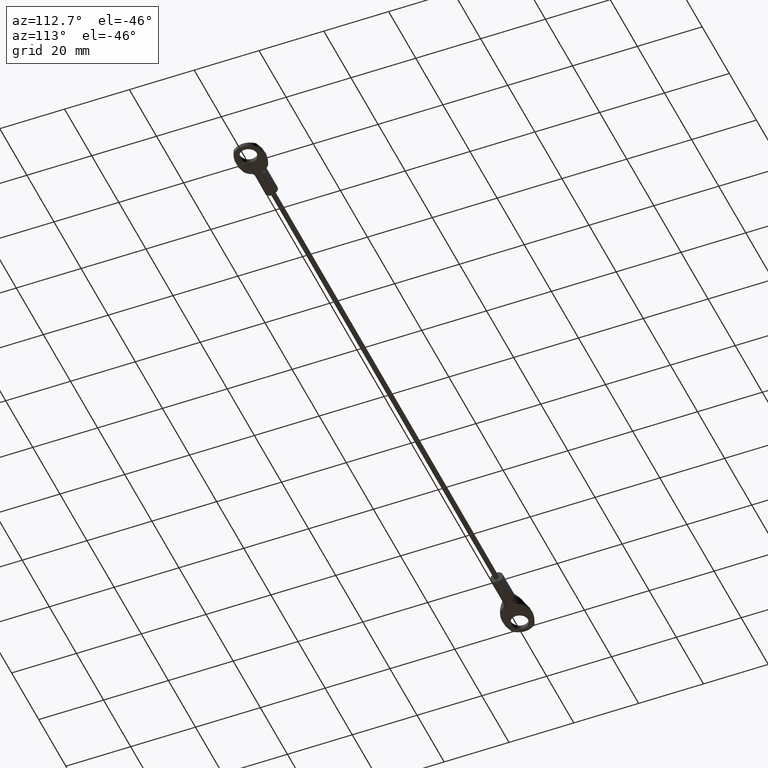
[diagram: clean part render]
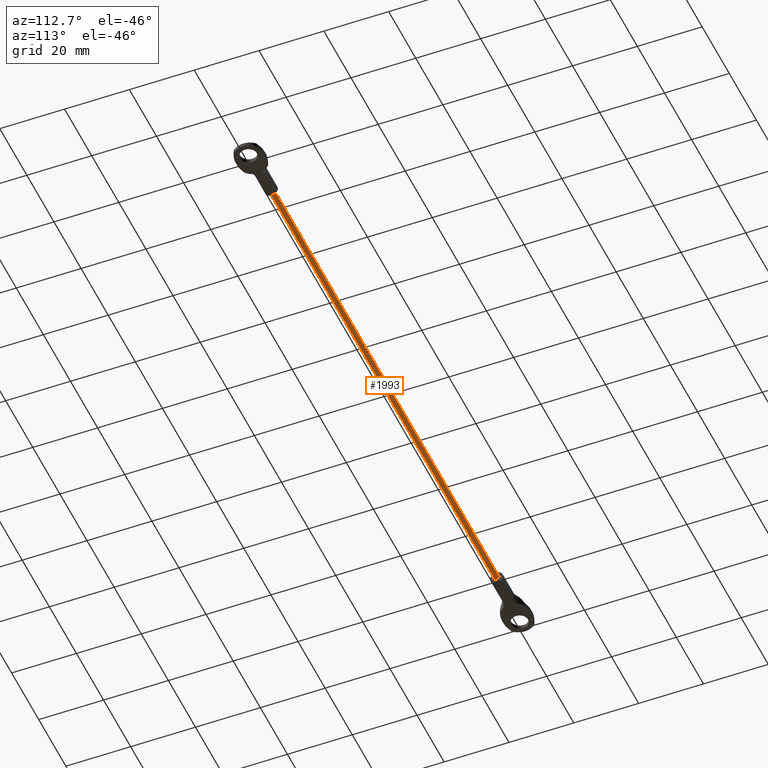
[diagram: same view with one face highlighted and labeled with its STEP entity id]
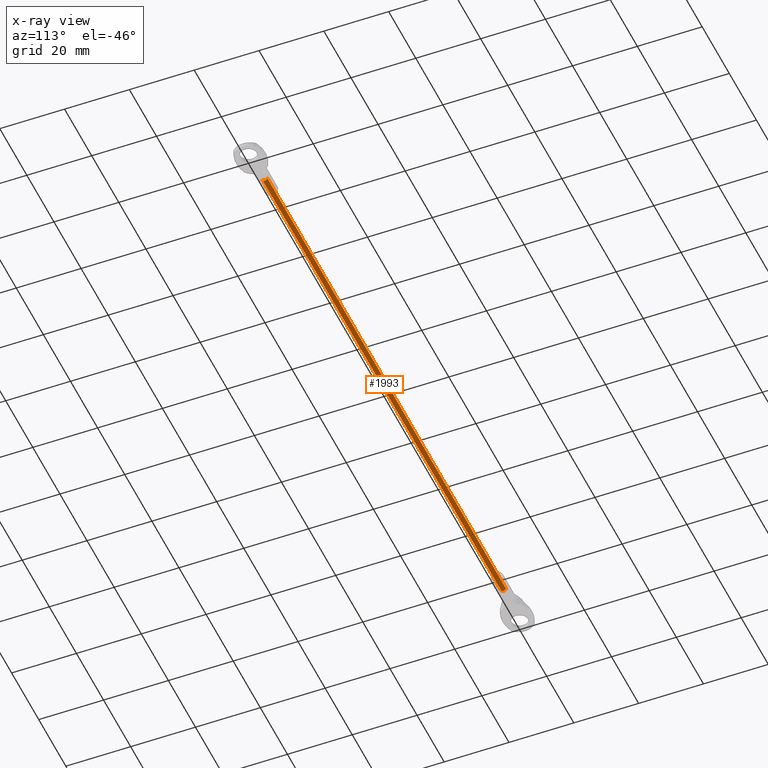
[diagram: x-ray of the same camera — body ghosted, the highlighted face saturated]
A machine part, auxiliary view. The second image highlights one B-rep face of the part: STEP entity #1993.
The next image is the same camera in x-ray: the body ghosted, the highlighted face saturated — about 0% of this face is hidden behind the body in this view.
In plain terms, the highlighted face is a freeform B-spline surface patch.
Its self-contained STEP definition (entity closure, byte-faithful):
#1891=CARTESIAN_POINT('',(-7.599999999999993,0.744757144772750,2.088525675992569));
#1892=CARTESIAN_POINT('',(-7.599999999999993,0.747290711586454,2.067211046478483));
#1893=CARTESIAN_POINT('',(-7.599999999999993,0.748601098816400,2.045786404651143));
#1894=CARTESIAN_POINT('',(-7.599999999999993,0.794387503467543,1.297185305834743));
#1895=CARTESIAN_POINT('',(-7.599999999999993,0.045786404651143,1.251398901183600));
#1896=CARTESIAN_POINT('',(-7.599999999999993,-0.702814694165257,1.205612496532457));
#1897=CARTESIAN_POINT('',(-7.599999999999993,-0.748601098816400,1.954213595348857));
#1898=CARTESIAN_POINT('',(-192.510000000000050,0.744757144772750,2.088525675992569));
#1899=CARTESIAN_POINT('',(-192.510000000000130,0.747290711586454,2.067211046478483));
#1900=CARTESIAN_POINT('',(-192.510000000000100,0.748601098816400,2.045786404651143));
#1901=CARTESIAN_POINT('',(-192.510000000000050,0.794387503467543,1.297185305834743));
#1902=CARTESIAN_POINT('',(-192.510000000000100,0.045786404651143,1.251398901183600));
#1903=CARTESIAN_POINT('',(-192.510000000000050,-0.702814694165257,1.205612496532457));
#1904=CARTESIAN_POINT('',(-192.510000000000100,-0.748601098816400,1.954213595348857));
#1912=(BOUNDED_SURFACE()B_SPLINE_SURFACE(2,1,((#1891,#1898),(#1892,#1899),(#1893,#1900),(#1894,#1901),(#1895,#1902),(#1896,#1903),(#1897,#1904)),.UNSPECIFIED.,.F.,.F.,.U.)B_SPLINE_SURFACE_WITH_KNOTS((3,2,2,3),(2,2),(3.078760800517997,3.141592653589793,4.712388980384690,6.283185307179586),(0.0,184.910000000000110),.UNSPECIFIED.)GEOMETRIC_REPRESENTATION_ITEM()RATIONAL_B_SPLINE_SURFACE(((0.977505800795127,0.977505800795127),(0.988284271247462,0.988284271247462),(1.0,1.0),(0.707106781186548,0.707106781186548),(1.0,1.0),(0.707106781186548,0.707106781186548),(1.0,1.0)))REPRESENTATION_ITEM('')SURFACE());
#1913=CARTESIAN_POINT('',(-11.999999999999989,0.744757144720459,2.088525676432488));
#1914=VERTEX_POINT('',#1913);
#1915=CARTESIAN_POINT('',(-12.0,0.0,1.250000000000000));
#1916=VERTEX_POINT('',#1915);
#1917=CARTESIAN_POINT('',(-11.999999999999993,0.744757144720459,2.088525676432488));
#1918=CARTESIAN_POINT('',(-11.999999999999998,0.750000000000000,2.044418090183503));
#1919=CARTESIAN_POINT('',(-12.0,0.750000000000000,2.0));
#1920=CARTESIAN_POINT('',(-12.0,0.750000000000000,1.250000000000000));
#1921=CARTESIAN_POINT('',(-12.0,0.0,1.250000000000000));
#1929=(BOUNDED_CURVE()B_SPLINE_CURVE(2,(#1917,#1918,#1919,#1920,#1921),.UNSPECIFIED.,.F.,.U.)B_SPLINE_CURVE_WITH_KNOTS((3,2,3),(0.229562473315988,0.250000000000000,0.500000000000000),.UNSPECIFIED.)CURVE()GEOMETRIC_REPRESENTATION_ITEM()RATIONAL_B_SPLINE_CURVE((0.956026753796551,0.976055948099735,1.0,0.707106781186548,1.0))REPRESENTATION_ITEM(''));
#1930=EDGE_CURVE('',#1914,#1916,#1929,.T.);
#1931=ORIENTED_EDGE('',*,*,#1930,.T.);
#1932=CARTESIAN_POINT('',(-11.999999999999989,-0.748601098783436,1.954213594809890));
#1933=VERTEX_POINT('',#1932);
#1934=CARTESIAN_POINT('',(-12.0,0.0,1.250000000000000));
#1935=CARTESIAN_POINT('',(-12.0,-0.705529549161458,1.250000000000000));
#1936=CARTESIAN_POINT('',(-11.999999999999995,-0.748601098783436,1.954213594809890));
#1944=(BOUNDED_CURVE()B_SPLINE_CURVE(2,(#1934,#1935,#1936),.UNSPECIFIED.,.F.,.U.)B_SPLINE_CURVE_WITH_KNOTS((3,3),(0.500000000000000,0.739332961993513),.UNSPECIFIED.)CURVE()GEOMETRIC_REPRESENTATION_ITEM()RATIONAL_B_SPLINE_CURVE((1.0,0.719603993574250,0.976072041140714))REPRESENTATION_ITEM(''));
#1945=EDGE_CURVE('',#1916,#1933,#1944,.T.);
#1946=ORIENTED_EDGE('',*,*,#1945,.T.);
#1947=CARTESIAN_POINT('',(-188.0,-0.748601098783436,1.954213594809890));
#1948=VERTEX_POINT('',#1947);
#1949=CARTESIAN_POINT('',(-11.999999999999989,-0.748601098783436,1.954213594809890));
#1950=CARTESIAN_POINT('',(-188.0,-0.748601098783436,1.954213594809890));
#1951=QUASI_UNIFORM_CURVE('',1,(#1949,#1950),.UNSPECIFIED.,.F.,.U.);
#1952=EDGE_CURVE('',#1933,#1948,#1951,.T.);
#1953=ORIENTED_EDGE('',*,*,#1952,.T.);
#1954=CARTESIAN_POINT('',(-188.0,0.0,1.250000000000000));
#1955=VERTEX_POINT('',#1954);
#1956=CARTESIAN_POINT('',(-188.0,0.0,1.250000000000000));
#1957=CARTESIAN_POINT('',(-188.000000000000060,-0.705529549161458,1.250000000000000));
#1958=CARTESIAN_POINT('',(-188.0,-0.748601098783436,1.954213594809890));
#1966=(BOUNDED_CURVE()B_SPLINE_CURVE(2,(#1956,#1957,#1958),.UNSPECIFIED.,.F.,.U.)B_SPLINE_CURVE_WITH_KNOTS((3,3),(0.500000000000000,0.739332961993513),.UNSPECIFIED.)CURVE()GEOMETRIC_REPRESENTATION_ITEM()RATIONAL_B_SPLINE_CURVE((1.0,0.719603993574250,0.976072041140714))REPRESENTATION_ITEM(''));
#1967=EDGE_CURVE('',#1955,#1948,#1966,.T.);
#1968=ORIENTED_EDGE('',*,*,#1967,.F.);
#1969=CARTESIAN_POINT('',(-188.0,0.744757144720459,2.088525676432489));
#1970=VERTEX_POINT('',#1969);
#1971=CARTESIAN_POINT('',(-188.000000000000030,0.744757144720459,2.088525676432489));
#1972=CARTESIAN_POINT('',(-188.000000000000030,0.750000000000000,2.044418090183503));
#1973=CARTESIAN_POINT('',(-188.0,0.750000000000000,2.0));
#1974=CARTESIAN_POINT('',(-188.000000000000090,0.750000000000000,1.250000000000000));
#1975=CARTESIAN_POINT('',(-188.0,0.0,1.250000000000000));
#1983=(BOUNDED_CURVE()B_SPLINE_CURVE(2,(#1971,#1972,#1973,#1974,#1975),.UNSPECIFIED.,.F.,.U.)B_SPLINE_CURVE_WITH_KNOTS((3,2,3),(0.229562473315988,0.250000000000000,0.500000000000000),.UNSPECIFIED.)CURVE()GEOMETRIC_REPRESENTATION_ITEM()RATIONAL_B_SPLINE_CURVE((0.956026753796550,0.976055948099735,1.0,0.707106781186548,1.0))REPRESENTATION_ITEM(''));
#1984=EDGE_CURVE('',#1970,#1955,#1983,.T.);
#1985=ORIENTED_EDGE('',*,*,#1984,.F.);
#1986=CARTESIAN_POINT('',(-11.999999999999989,0.744757144720459,2.088525676432488));
#1987=CARTESIAN_POINT('',(-188.0,0.744757144720459,2.088525676432489));
#1988=QUASI_UNIFORM_CURVE('',1,(#1986,#1987),.UNSPECIFIED.,.F.,.U.);
#1989=EDGE_CURVE('',#1914,#1970,#1988,.T.);
#1990=ORIENTED_EDGE('',*,*,#1989,.F.);
#1991=EDGE_LOOP('',(#1931,#1946,#1953,#1968,#1985,#1990));
#1992=FACE_OUTER_BOUND('',#1991,.T.);
#1993=ADVANCED_FACE('',(#1992),#1912,.T.);